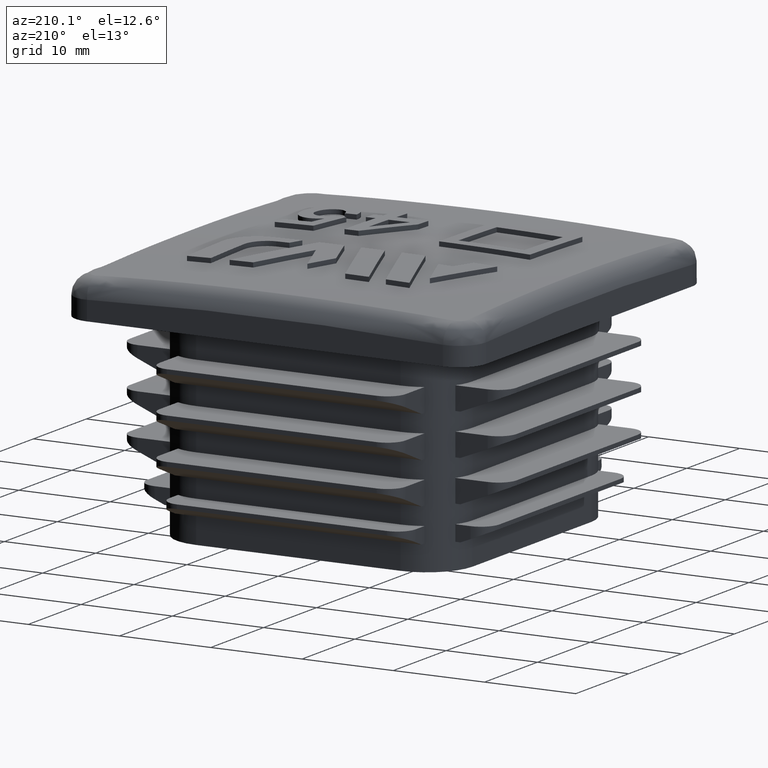
[diagram: clean part render]
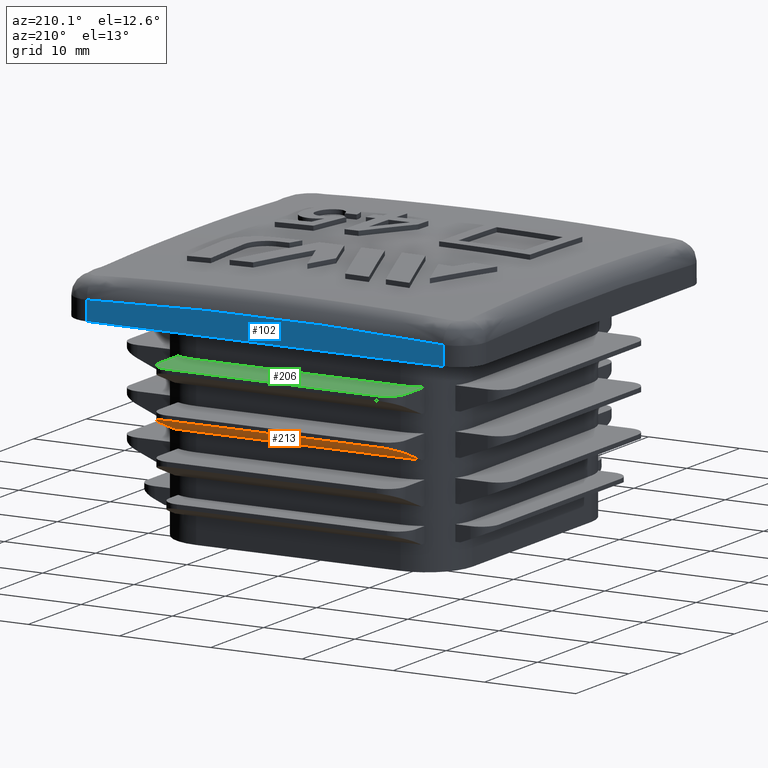
[diagram: same view with three faces highlighted in distinct colors, each labeled with its STEP entity id]
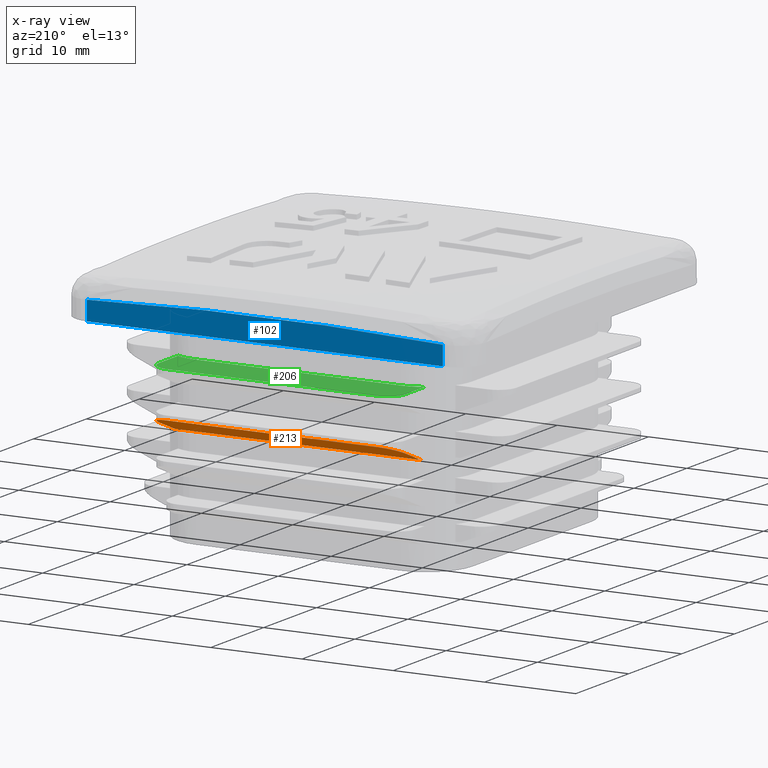
[diagram: x-ray of the same camera — body ghosted, the three highlighted faces saturated]
A machine part, auxiliary view with three faces highlighted in distinct colors.
The next image is the same camera in x-ray (body ghosted, the three faces saturated) — at least one of them is partly hidden behind the body in this view.
Their STEP definitions:

[orange] entity #213 — the highlighted planar face has unit normal (-0, -0.3746, 0.9272).
#213 = ADVANCED_FACE( '', ( #647 ), #648, .F. );
#647 = FACE_OUTER_BOUND( '', #2466, .T. );
#648 = PLANE( '', #2467 );
#2466 = EDGE_LOOP( '', ( #4682, #4683, #4684, #4685, #4686, #4687, #4688, #4689 ) );
#2467 = AXIS2_PLACEMENT_3D( '', #4690, #4691, #4692 );
#4682 = ORIENTED_EDGE( '', *, *, #6308, .T. );
#4683 = ORIENTED_EDGE( '', *, *, #6309, .T. );
#4684 = ORIENTED_EDGE( '', *, *, #6310, .F. );
#4685 = ORIENTED_EDGE( '', *, *, #6311, .T. );
#4686 = ORIENTED_EDGE( '', *, *, #6312, .F. );
#4687 = ORIENTED_EDGE( '', *, *, #6306, .T. );
#4688 = ORIENTED_EDGE( '', *, *, #6313, .F. );
#4689 = ORIENTED_EDGE( '', *, *, #6305, .T. );
#4690 = CARTESIAN_POINT( '', ( 13.5000000000000, 16.2000000000001, 11.0000000000000 ) );
#4691 = DIRECTION( '', ( -2.29372807240440E-017, -0.374606593415912, 0.927183854566787 ) );
#4692 = DIRECTION( '', ( -5.67717619732006E-017, -0.927183854566787, -0.374606593415912 ) );
#6305 = EDGE_CURVE( '', #7413, #7415, #7417, .T. );
#6306 = EDGE_CURVE( '', #7418, #6782, #7419, .T. );
#6308 = EDGE_CURVE( '', #7415, #7421, #7422, .T. );
#6309 = EDGE_CURVE( '', #7421, #7423, #7424, .F. );
#6310 = EDGE_CURVE( '', #7425, #7423, #7426, .T. );
#6311 = EDGE_CURVE( '', #7425, #7427, #7428, .F. );
#6312 = EDGE_CURVE( '', #7418, #7427, #7429, .T. );
#6313 = EDGE_CURVE( '', #7413, #6782, #7430, .T. );
#6782 = VERTEX_POINT( '', #8847 );
#7413 = VERTEX_POINT( '', #10408 );
#7415 = VERTEX_POINT( '', #10410 );
#7417 = LINE( '', #10413, #10414 );
#7418 = VERTEX_POINT( '', #10415 );
#7419 = LINE( '', #10416, #10417 );
#7421 = VERTEX_POINT( '', #10420 );
#7422 = LINE( '', #10421, #10422 );
#7423 = VERTEX_POINT( '', #10423 );
#7424 = ELLIPSE( '', #10424, 2.15706948535517, 2.00000000000000 );
#7425 = VERTEX_POINT( '', #10425 );
#7426 = LINE( '', #10426, #10427 );
#7427 = VERTEX_POINT( '', #10428 );
#7428 = ELLIPSE( '', #10429, 2.15706948535517, 2.00000000000000 );
#7429 = LINE( '', #10430, #10431 );
#7430 = LINE( '', #10432, #10433 );
#8847 = CARTESIAN_POINT( '', ( 11.2000000000000, 16.2000000000001, 11.0000000000000 ) );
#10408 = CARTESIAN_POINT( '', ( -11.2000000000000, 16.2000000000001, 11.0000000000000 ) );
#10410 = CARTESIAN_POINT( '', ( -13.5000000000000, 16.2000000000001, 11.0000000000000 ) );
#10413 = CARTESIAN_POINT( '', ( 13.5000000000000, 16.2000000000001, 11.0000000000000 ) );
#10414 = VECTOR( '', #11664, 1000.00000000000 );
#10415 = CARTESIAN_POINT( '', ( 13.5000000000000, 16.2000000000001, 11.0000000000000 ) );
#10416 = CARTESIAN_POINT( '', ( 13.5000000000000, 16.2000000000001, 11.0000000000000 ) );
#10417 = VECTOR( '', #11665, 1000.00000000000 );
#10420 = CARTESIAN_POINT( '', ( -13.5000000000000, 19.2000000000000, 12.2120786775054 ) );
#10421 = CARTESIAN_POINT( '', ( -13.5000000000000, 16.2000000000001, 11.0000000000000 ) );
#10422 = VECTOR( '', #11667, 1000.00000000000 );
#10423 = CARTESIAN_POINT( '', ( -11.5000000000000, 21.2000000000000, 13.0201311291758 ) );
#10424 = AXIS2_PLACEMENT_3D( '', #11668, #11669, #11670 );
#10425 = CARTESIAN_POINT( '', ( 11.5000000000000, 21.2000000000000, 13.0201311291758 ) );
#10426 = CARTESIAN_POINT( '', ( 13.5000000000000, 21.2000000000000, 13.0201311291758 ) );
#10427 = VECTOR( '', #11671, 1000.00000000000 );
#10428 = CARTESIAN_POINT( '', ( 13.5000000000000, 19.2000000000000, 12.2120786775054 ) );
#10429 = AXIS2_PLACEMENT_3D( '', #11672, #11673, #11674 );
#10430 = CARTESIAN_POINT( '', ( 13.5000000000000, 16.2000000000001, 11.0000000000000 ) );
#10431 = VECTOR( '', #11675, 1000.00000000000 );
#10432 = CARTESIAN_POINT( '', ( 11.2000000000000, 16.2000000000000, 11.0000000000000 ) );
#10433 = VECTOR( '', #11676, 1000.00000000000 );
#11664 = DIRECTION( '', ( -1.00000000000000, 6.12303176911189E-017, 6.16297582203916E-032 ) );
#11665 = DIRECTION( '', ( -1.00000000000000, 6.12303176911189E-017, 6.16297582203916E-032 ) );
#11667 = DIRECTION( '', ( 5.67717619732005E-017, 0.927183854566787, 0.374606593415912 ) );
#11668 = CARTESIAN_POINT( '', ( -11.5000000000000, 19.2000000000000, 12.2120786775054 ) );
#11669 = DIRECTION( '', ( -2.29372807240440E-017, -0.374606593415912, 0.927183854566788 ) );
#11670 = DIRECTION( '', ( 5.67717619732004E-017, 0.927183854566788, 0.374606593415912 ) );
#11671 = DIRECTION( '', ( -1.00000000000000, 6.12303176911189E-017, 6.16297582203916E-032 ) );
#11672 = CARTESIAN_POINT( '', ( 11.5000000000000, 19.2000000000000, 12.2120786775054 ) );
#11673 = DIRECTION( '', ( -2.29372807240440E-017, -0.374606593415912, 0.927183854566788 ) );
#11674 = DIRECTION( '', ( -5.67717619732004E-017, -0.927183854566788, -0.374606593415912 ) );
#11675 = DIRECTION( '', ( 5.67717619732005E-017, 0.927183854566787, 0.374606593415912 ) );
#11676 = DIRECTION( '', ( 1.00000000000000, 0.000000000000000, 2.47386541634303E-017 ) );

[blue] entity #102 — the highlighted planar face has unit normal (0, 1, 0).
#102 = ADVANCED_FACE( '', ( #422 ), #423, .T. );
#422 = FACE_OUTER_BOUND( '', #2185, .T. );
#423 = PLANE( '', #2186 );
#2185 = EDGE_LOOP( '', ( #3814, #3815, #3816, #3817 ) );
#2186 = AXIS2_PLACEMENT_3D( '', #3818, #3819, #3820 );
#3814 = ORIENTED_EDGE( '', *, *, #5993, .T. );
#3815 = ORIENTED_EDGE( '', *, *, #5982, .T. );
#3816 = ORIENTED_EDGE( '', *, *, #5994, .F. );
#3817 = ORIENTED_EDGE( '', *, *, #5970, .T. );
#3818 = CARTESIAN_POINT( '', ( 19.5000000000000, 22.5000000000000, -73.6518215693001 ) );
#3819 = DIRECTION( '', ( 0.000000000000000, 1.00000000000000, 0.000000000000000 ) );
#3820 = DIRECTION( '', ( -1.00000000000000, 0.000000000000000, 0.000000000000000 ) );
#5970 = EDGE_CURVE( '', #6864, #6862, #6865, .T. );
#5982 = EDGE_CURVE( '', #6877, #6881, #6883, .T. );
#5993 = EDGE_CURVE( '', #6862, #6877, #6897, .T. );
#5994 = EDGE_CURVE( '', #6864, #6881, #6898, .T. );
#6862 = VERTEX_POINT( '', #9020 );
#6864 = VERTEX_POINT( '', #9022 );
#6865 = LINE( '', #9023, #9024 );
#6877 = VERTEX_POINT( '', #9057 );
#6881 = VERTEX_POINT( '', #9103 );
#6883 = B_SPLINE_CURVE_WITH_KNOTS( '', 3, ( #9105, #9106, #9107, #9108, #9109, #9110, #9111, #9112, #9113, #9114, #9115, #9116, #9117, #9118, #9119, #9120, #9121, #9122, #9123, #9124 ), .UNSPECIFIED., .F., .F., ( 4, 2, 2, 2, 1, 2, 1, 2, 2, 2, 4 ), ( 3.46944695195361E-018, 0.00487806104345924, 0.00975612208691847, 0.0109756373477833, 0.0121951526086481, 0.0146341831303777, 0.0195122441738370, 0.0243903052172962, 0.0292683662607555, 0.0341464273042147, 0.0390244883476740 ), .UNSPECIFIED. );
#6897 = LINE( '', #9263, #9264 );
#6898 = LINE( '', #9265, #9266 );
#9020 = CARTESIAN_POINT( '', ( -19.5000000000000, 22.5000000000000, 22.0000000000000 ) );
#9022 = CARTESIAN_POINT( '', ( 19.5000000000000, 22.5000000000000, 22.0000000000000 ) );
#9023 = CARTESIAN_POINT( '', ( -40.5600000000000, 22.5000000000000, 22.0000000000000 ) );
#9024 = VECTOR( '', #11181, 1000.00000000000 );
#9057 = CARTESIAN_POINT( '', ( -19.5000000000000, 22.5000000000000, 24.0983024040417 ) );
#9103 = CARTESIAN_POINT( '', ( 19.5000000000000, 22.5000000000000, 24.0983024040417 ) );
#9105 = CARTESIAN_POINT( '', ( -19.5000000000000, 22.5000000000000, 24.0983024040417 ) );
#9106 = CARTESIAN_POINT( '', ( -17.8758514339005, 22.5000000000000, 24.1796444846864 ) );
#9107 = CARTESIAN_POINT( '', ( -16.2513168031034, 22.5000000000000, 24.2502206889668 ) );
#9108 = CARTESIAN_POINT( '', ( -13.0014952021510, 22.5000000000000, 24.3703932136781 ) );
#9109 = CARTESIAN_POINT( '', ( -11.3762083257112, 22.5000000000000, 24.4199921474787 ) );
#9110 = CARTESIAN_POINT( '', ( -9.34414473812274, 22.5000000000000, 24.4693028169258 ) );
#9111 = CARTESIAN_POINT( '', ( -8.93769944005145, 22.5000000000000, 24.4785308990734 ) );
#9112 = CARTESIAN_POINT( '', ( -8.12481556716204, 22.5000000000000, 24.4957281546633 ) );
#9113 = CARTESIAN_POINT( '', ( -6.90551521362563, 22.5000000000000, 24.5196351928601 ) );
#9114 = CARTESIAN_POINT( '', ( -5.68629054326760, 22.5000000000000, 24.5379264648953 ) );
#9115 = CARTESIAN_POINT( '', ( -3.24794057724102, 22.5000000000000, 24.5671353094128 ) );
#9116 = CARTESIAN_POINT( '', ( 0.00292818756262745, 22.5000000000000, 24.5864525518590 ) );
#9117 = CARTESIAN_POINT( '', ( 3.25327567852810, 22.5000000000000, 24.5670907635893 ) );
#9118 = CARTESIAN_POINT( '', ( 6.50335889344360, 22.5000000000000, 24.5281194328744 ) );
#9119 = CARTESIAN_POINT( '', ( 8.12826821434859, 22.5000000000000, 24.4988179753886 ) );
#9120 = CARTESIAN_POINT( '', ( 11.3778136493284, 22.5000000000000, 24.4199428453122 ) );
#9121 = CARTESIAN_POINT( '', ( 13.0024496429834, 22.5000000000000, 24.3703602374510 ) );
#9122 = CARTESIAN_POINT( '', ( 16.2514388690146, 22.5000000000000, 24.2502138571537 ) );
#9123 = CARTESIAN_POINT( '', ( 17.8757920659908, 22.5000000000000, 24.1796474580039 ) );
#9124 = CARTESIAN_POINT( '', ( 19.5000000000000, 22.5000000000000, 24.0983024040417 ) );
#9263 = CARTESIAN_POINT( '', ( -19.5000000000000, 22.5000000000000, -73.6518215693001 ) );
#9264 = VECTOR( '', #11217, 1000.00000000000 );
#9265 = CARTESIAN_POINT( '', ( 19.5000000000000, 22.5000000000000, -73.6518215693001 ) );
#9266 = VECTOR( '', #11218, 1000.00000000000 );
#11181 = DIRECTION( '', ( -1.00000000000000, 0.000000000000000, 6.12303176911189E-017 ) );
#11217 = DIRECTION( '', ( 0.000000000000000, 0.000000000000000, 1.00000000000000 ) );
#11218 = DIRECTION( '', ( 0.000000000000000, 0.000000000000000, 1.00000000000000 ) );

[green] entity #206 — the highlighted planar face has unit normal (-0, -0, -1).
#206 = ADVANCED_FACE( '', ( #633 ), #634, .F. );
#633 = FACE_OUTER_BOUND( '', #2452, .T. );
#634 = PLANE( '', #2453 );
#2452 = EDGE_LOOP( '', ( #4629, #4630, #4631, #4632, #4633, #4634, #4635, #4636 ) );
#2453 = AXIS2_PLACEMENT_3D( '', #4637, #4638, #4639 );
#4629 = ORIENTED_EDGE( '', *, *, #6294, .F. );
#4630 = ORIENTED_EDGE( '', *, *, #6295, .F. );
#4631 = ORIENTED_EDGE( '', *, *, #5935, .F. );
#4632 = ORIENTED_EDGE( '', *, *, #6296, .F. );
#4633 = ORIENTED_EDGE( '', *, *, #6297, .T. );
#4634 = ORIENTED_EDGE( '', *, *, #6291, .T. );
#4635 = ORIENTED_EDGE( '', *, *, #6298, .T. );
#4636 = ORIENTED_EDGE( '', *, *, #6299, .T. );
#4637 = CARTESIAN_POINT( '', ( 13.5000000000000, 21.2000000000000, 18.0000000000000 ) );
#4638 = DIRECTION( '', ( -6.16297582203915E-032, -6.12303176911189E-017, -1.00000000000000 ) );
#4639 = DIRECTION( '', ( 6.12303176911189E-017, 1.00000000000000, -6.12303176911189E-017 ) );
#5935 = EDGE_CURVE( '', #6794, #6796, #6797, .F. );
#6291 = EDGE_CURVE( '', #7394, #7395, #7396, .T. );
#6294 = EDGE_CURVE( '', #7399, #7400, #7401, .F. );
#6295 = EDGE_CURVE( '', #6796, #7399, #7402, .T. );
#6296 = EDGE_CURVE( '', #7403, #6794, #7404, .T. );
#6297 = EDGE_CURVE( '', #7403, #7394, #7405, .F. );
#6298 = EDGE_CURVE( '', #7395, #7406, #7407, .F. );
#6299 = EDGE_CURVE( '', #7406, #7400, #7408, .T. );
#6794 = VERTEX_POINT( '', #8862 );
#6796 = VERTEX_POINT( '', #8865 );
#6797 = CIRCLE( '', #8866, 5.00000000000000 );
#7394 = VERTEX_POINT( '', #10380 );
#7395 = VERTEX_POINT( '', #10381 );
#7396 = LINE( '', #10382, #10383 );
#7399 = VERTEX_POINT( '', #10388 );
#7400 = VERTEX_POINT( '', #10389 );
#7401 = CIRCLE( '', #10390, 5.00000000000000 );
#7402 = LINE( '', #10391, #10392 );
#7403 = VERTEX_POINT( '', #10393 );
#7404 = LINE( '', #10394, #10395 );
#7405 = CIRCLE( '', #10396, 2.00000000000000 );
#7406 = VERTEX_POINT( '', #10397 );
#7407 = CIRCLE( '', #10398, 2.00000000000000 );
#7408 = LINE( '', #10399, #10400 );
#8862 = CARTESIAN_POINT( '', ( 13.5000000000000, 15.6395945760846, 18.0000000000000 ) );
#8865 = CARTESIAN_POINT( '', ( 11.2000000000000, 16.2000000000000, 18.0000000000000 ) );
#8866 = AXIS2_PLACEMENT_3D( '', #11128, #11129, #11130 );
#10380 = CARTESIAN_POINT( '', ( 11.5000000000000, 21.2000000000000, 18.0000000000000 ) );
#10381 = CARTESIAN_POINT( '', ( -11.5000000000000, 21.2000000000000, 18.0000000000000 ) );
#10382 = CARTESIAN_POINT( '', ( 13.5000000000000, 21.2000000000000, 18.0000000000000 ) );
#10383 = VECTOR( '', #11642, 1000.00000000000 );
#10388 = CARTESIAN_POINT( '', ( -11.2000000000000, 16.2000000000000, 18.0000000000000 ) );
#10389 = CARTESIAN_POINT( '', ( -13.5000000000000, 15.6395945760846, 18.0000000000000 ) );
#10390 = AXIS2_PLACEMENT_3D( '', #11645, #11646, #11647 );
#10391 = CARTESIAN_POINT( '', ( 11.2000000000000, 16.2000000000000, 18.0000000000000 ) );
#10392 = VECTOR( '', #11648, 1000.00000000000 );
#10393 = CARTESIAN_POINT( '', ( 13.5000000000000, 19.2000000000000, 18.0000000000000 ) );
#10394 = CARTESIAN_POINT( '', ( 13.5000000000000, 21.2000000000000, 18.0000000000000 ) );
#10395 = VECTOR( '', #11649, 1000.00000000000 );
#10396 = AXIS2_PLACEMENT_3D( '', #11650, #11651, #11652 );
#10397 = CARTESIAN_POINT( '', ( -13.5000000000000, 19.2000000000000, 18.0000000000000 ) );
#10398 = AXIS2_PLACEMENT_3D( '', #11653, #11654, #11655 );
#10399 = CARTESIAN_POINT( '', ( -13.5000000000000, 21.2000000000000, 18.0000000000000 ) );
#10400 = VECTOR( '', #11656, 1000.00000000000 );
#11128 = CARTESIAN_POINT( '', ( 11.2000000000000, 11.2000000000000, 18.0000000000000 ) );
#11129 = DIRECTION( '', ( -6.16297582203915E-032, -6.12303176911189E-017, -1.00000000000000 ) );
#11130 = DIRECTION( '', ( 0.000000000000000, 1.00000000000000, -6.12303176911189E-017 ) );
#11642 = DIRECTION( '', ( -1.00000000000000, 6.12303176911189E-017, 6.16297582203916E-032 ) );
#11645 = CARTESIAN_POINT( '', ( -11.2000000000000, 11.2000000000000, 18.0000000000000 ) );
#11646 = DIRECTION( '', ( -6.16297582203915E-032, -6.12303176911189E-017, -1.00000000000000 ) );
#11647 = DIRECTION( '', ( 0.000000000000000, 1.00000000000000, -6.12303176911189E-017 ) );
#11648 = DIRECTION( '', ( -1.00000000000000, 0.000000000000000, 6.16297582203915E-032 ) );
#11649 = DIRECTION( '', ( -6.12303176911189E-017, -1.00000000000000, -1.05303136002655E-016 ) );
#11650 = CARTESIAN_POINT( '', ( 11.5000000000000, 19.2000000000000, 18.0000000000000 ) );
#11651 = DIRECTION( '', ( -6.16297582203915E-032, -6.12303176911189E-017, -1.00000000000000 ) );
#11652 = DIRECTION( '', ( -1.00000000000000, 6.12303176911189E-017, 5.78806064158362E-032 ) );
#11653 = CARTESIAN_POINT( '', ( -11.5000000000000, 19.2000000000000, 18.0000000000000 ) );
#11654 = DIRECTION( '', ( -6.16297582203915E-032, -6.12303176911189E-017, -1.00000000000000 ) );
#11655 = DIRECTION( '', ( -1.00000000000000, 6.12303176911189E-017, 5.78806064158362E-032 ) );
#11656 = DIRECTION( '', ( -6.12303176911189E-017, -1.00000000000000, -1.05303136002655E-016 ) );